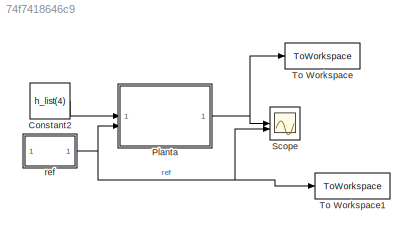
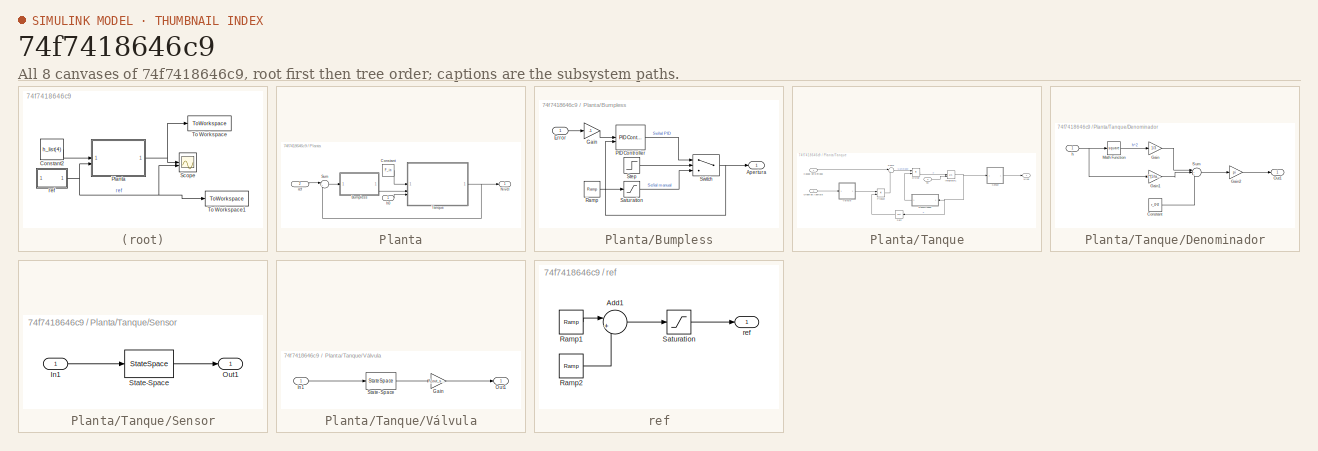
[diagram: thumbnail index - all 8 canvases of the model, root first then tree order]
MODEL slx_74f7418646c9
KIND model
CONFIG AbsTol = auto
CONFIG EnableMultiTasking = off
CONFIG FixedStep = 0.1
CONFIG MaxStep = auto
CONFIG MinStep = auto
CONFIG RelTol = 1e-3
CONFIG SampleTimeConstraint = Unconstrained
CONFIG SolverName = FixedStepAuto
CONFIG StartTime = 0.0
CONFIG StopTime = 700
BLOCK [Constant] Constant2
  Value = h_list(4)
BLOCK [SubSystem] Planta
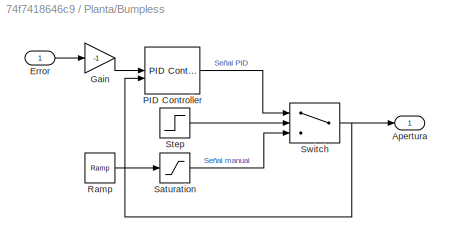
BLOCK [SubSystem] Planta/Bumpless
BLOCK [Outport] Planta/Bumpless/Apertura
BLOCK [Inport] Planta/Bumpless/Error
BLOCK [Gain] Planta/Bumpless/Gain
  Gain = -1
BLOCK [Reference] Planta/Bumpless/PID Controller  REF=slpidlib/PID Controller
  LibrarySourceBlock = simulink/Continuous/PID Controller
  SourceBlock = slpidlib/PID Controller
  SourceType = PID 1dof
BLOCK [Reference] Planta/Bumpless/Ramp  REF=simulink/Sources/Ramp
  SourceBlock = simulink/Sources/Ramp
  SourceType = Ramp
BLOCK [Saturate] Planta/Bumpless/Saturation
  LowerLimit = 0
  UpperLimit = k_list(1)
BLOCK [Step] Planta/Bumpless/Step
  SampleTime = 0
  Time = 220
BLOCK [Switch] Planta/Bumpless/Switch
  Criteria = u2 > Threshold
  InputSameDT = off
  SaturateOnIntegerOverflow = off
BLOCK [Constant] Planta/Constant
  Value = F_in
BLOCK [Outport] Planta/Nivel
BLOCK [Sum] Planta/Sum
  Inputs = |+-
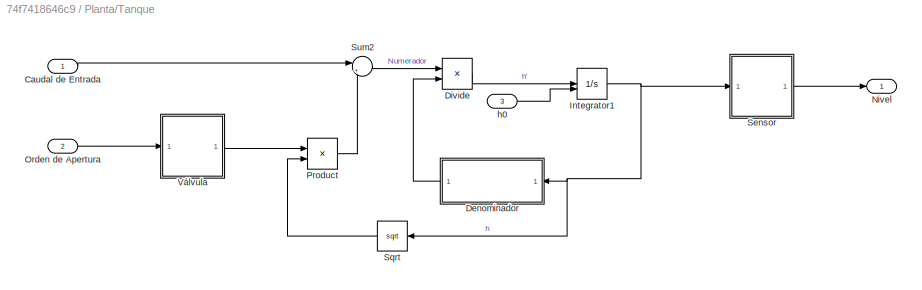
BLOCK [SubSystem] Planta/Tanque
BLOCK [Inport] Planta/Tanque/Caudal de Entrada
BLOCK [SubSystem] Planta/Tanque/Denominador
  NameLocation = top
BLOCK [Constant] Planta/Tanque/Denominador/Constant
  Value = r_0^2
BLOCK [Gain] Planta/Tanque/Denominador/Gain
  Gain = 1/3
BLOCK [Gain] Planta/Tanque/Denominador/Gain1
  Gain = 2*(1/tand(theta))*r_0
BLOCK [Gain] Planta/Tanque/Denominador/Gain2
  Gain = pi
BLOCK [Math] Planta/Tanque/Denominador/Math Function
  Operator = square
BLOCK [Outport] Planta/Tanque/Denominador/Out1
BLOCK [Sum] Planta/Tanque/Denominador/Sum
  Inputs = |+++
BLOCK [Inport] Planta/Tanque/Denominador/h
BLOCK [Product] Planta/Tanque/Divide
  Inputs = */
BLOCK [Integrator] Planta/Tanque/Integrator1
  InitialCondition = h_list(5)
  InitialConditionSource = external
BLOCK [Outport] Planta/Tanque/Nivel
BLOCK [Inport] Planta/Tanque/Orden de Apertura
  Port = 2
BLOCK [Product] Planta/Tanque/Product
BLOCK [SubSystem] Planta/Tanque/Sensor
BLOCK [Inport] Planta/Tanque/Sensor/In1
BLOCK [Outport] Planta/Tanque/Sensor/Out1
BLOCK [StateSpace] Planta/Tanque/Sensor/State-Space
  A = A
  B = B
  C = C
  D = D
  InitialCondition = h_list(4)*10
BLOCK [Sqrt] Planta/Tanque/Sqrt
  NameLocation = top
BLOCK [Sum] Planta/Tanque/Sum2
  Inputs = |+-
BLOCK [SubSystem] Planta/Tanque/Válvula
BLOCK [Gain] Planta/Tanque/Válvula/Gain
  Gain = F_out_sin_k
BLOCK [Inport] Planta/Tanque/Válvula/In1
BLOCK [Outport] Planta/Tanque/Válvula/Out1
BLOCK [StateSpace] Planta/Tanque/Válvula/State-Space
  A = A
  B = B
  C = C
  D = D
  InitialCondition = k_list(4)*10
BLOCK [Inport] Planta/Tanque/h0
  Port = 3
BLOCK [Inport] Planta/h0
BLOCK [Inport] Planta/ref
  Port = 2
BLOCK [Scope] Scope
  Floating = off
  NumInputPorts = 2
  ScopeSpecificationString = Simulink.scopes.TimeScopeBlockCfg('CurrentConfiguration', extmgr.ConfigurationSet(extmgr.Configuration('Core','General UI',true),extmgr.Configuration('Core','Source UI',true),extmgr.Configuration('Sources','WiredSimulink',true,'DataLoggingVariableName','ScopeData6'),extmgr.Configuration('Visuals','Time Domain',true,'SerializedDisplays',{struct('MinYLimReal','0.125','MaxYLimReal','0.875','YLabelRea...<+1469ch>
BLOCK [ToWorkspace] To Workspace
  FixptAsFi = on
  MaxDataPoints = inf
  SampleTime = -1
  SaveFormat = Timeseries
  VariableName = nivout
BLOCK [ToWorkspace] To Workspace1
  FixptAsFi = on
  MaxDataPoints = inf
  SampleTime = -1
  SaveFormat = Timeseries
  VariableName = nivout1
BLOCK [SubSystem] ref
BLOCK [Sum] ref/Add1
  Inputs = |+-
BLOCK [Reference] ref/Ramp1  REF=simulink/Sources/Ramp
  SourceBlock = simulink/Sources/Ramp
  SourceType = Ramp
BLOCK [Reference] ref/Ramp2  REF=simulink/Sources/Ramp
  SourceBlock = simulink/Sources/Ramp
  SourceType = Ramp
BLOCK [Saturate] ref/Saturation
  LowerLimit = h_list(1)
  UpperLimit = h_list(4)
BLOCK [Outport] ref/ref
  VectorParamsAs1DForOutWhenUnconnected = off
LINE Constant2:1 -> Planta:1
LINE Planta/Bumpless/Error:1 -> Planta/Bumpless/Gain:1
LINE Planta/Bumpless/Gain:1 -> Planta/Bumpless/PID Controller:1
LINE Planta/Bumpless/PID Controller:1 -> Planta/Bumpless/Switch:1
LINE Planta/Bumpless/Ramp:1 -> Planta/Bumpless/Saturation:1
LINE Planta/Bumpless/Saturation:1 -> Planta/Bumpless/Switch:3
LINE Planta/Bumpless/Step:1 -> Planta/Bumpless/Switch:2
NET Planta/Bumpless/Switch:1 -> Planta/Bumpless/Apertura:1, Planta/Bumpless/PID Controller:2
LINE Planta/Bumpless:1 -> Planta/Tanque:2
LINE Planta/Constant:1 -> Planta/Tanque:1
LINE Planta/Sum:1 -> Planta/Bumpless:1
LINE Planta/Tanque/Caudal de Entrada:1 -> Planta/Tanque/Sum2:1
LINE Planta/Tanque/Denominador/Constant:1 -> Planta/Tanque/Denominador/Sum:3
LINE Planta/Tanque/Denominador/Gain1:1 -> Planta/Tanque/Denominador/Sum:2
LINE Planta/Tanque/Denominador/Gain2:1 -> Planta/Tanque/Denominador/Out1:1
LINE Planta/Tanque/Denominador/Gain:1 -> Planta/Tanque/Denominador/Sum:1
LINE Planta/Tanque/Denominador/Math Function:1 -> Planta/Tanque/Denominador/Gain:1
LINE Planta/Tanque/Denominador/Sum:1 -> Planta/Tanque/Denominador/Gain2:1
NET Planta/Tanque/Denominador/h:1 -> Planta/Tanque/Denominador/Gain1:1, Planta/Tanque/Denominador/Math Function:1
LINE Planta/Tanque/Denominador:1 -> Planta/Tanque/Divide:2
LINE Planta/Tanque/Divide:1 -> Planta/Tanque/Integrator1:1
NET Planta/Tanque/Integrator1:1 -> Planta/Tanque/Denominador:1, Planta/Tanque/Sensor:1, Planta/Tanque/Sqrt:1
LINE Planta/Tanque/Orden de Apertura:1 -> Planta/Tanque/Válvula:1
LINE Planta/Tanque/Product:1 -> Planta/Tanque/Sum2:2
LINE Planta/Tanque/Sensor/In1:1 -> Planta/Tanque/Sensor/State-Space:1
LINE Planta/Tanque/Sensor/State-Space:1 -> Planta/Tanque/Sensor/Out1:1
LINE Planta/Tanque/Sensor:1 -> Planta/Tanque/Nivel:1
LINE Planta/Tanque/Sqrt:1 -> Planta/Tanque/Product:2
LINE Planta/Tanque/Sum2:1 -> Planta/Tanque/Divide:1
LINE Planta/Tanque/Válvula/Gain:1 -> Planta/Tanque/Válvula/Out1:1
LINE Planta/Tanque/Válvula/In1:1 -> Planta/Tanque/Válvula/State-Space:1
LINE Planta/Tanque/Válvula/State-Space:1 -> Planta/Tanque/Válvula/Gain:1
LINE Planta/Tanque/Válvula:1 -> Planta/Tanque/Product:1
LINE Planta/Tanque/h0:1 -> Planta/Tanque/Integrator1:2
NET Planta/Tanque:1 -> Planta/Nivel:1, Planta/Sum:2
LINE Planta/h0:1 -> Planta/Tanque:3
LINE Planta/ref:1 -> Planta/Sum:1
NET Planta:1 -> Scope:1, To Workspace:1
LINE ref/Add1:1 -> ref/Saturation:1
LINE ref/Ramp1:1 -> ref/Add1:1
LINE ref/Ramp2:1 -> ref/Add1:2
LINE ref/Saturation:1 -> ref/ref:1
NET ref:1 -> Planta:2, Scope:2, To Workspace1:1
note: NET lines group one-source signal fan-out (src -> all destinations, sorted); 1:1 wires keep LINE
